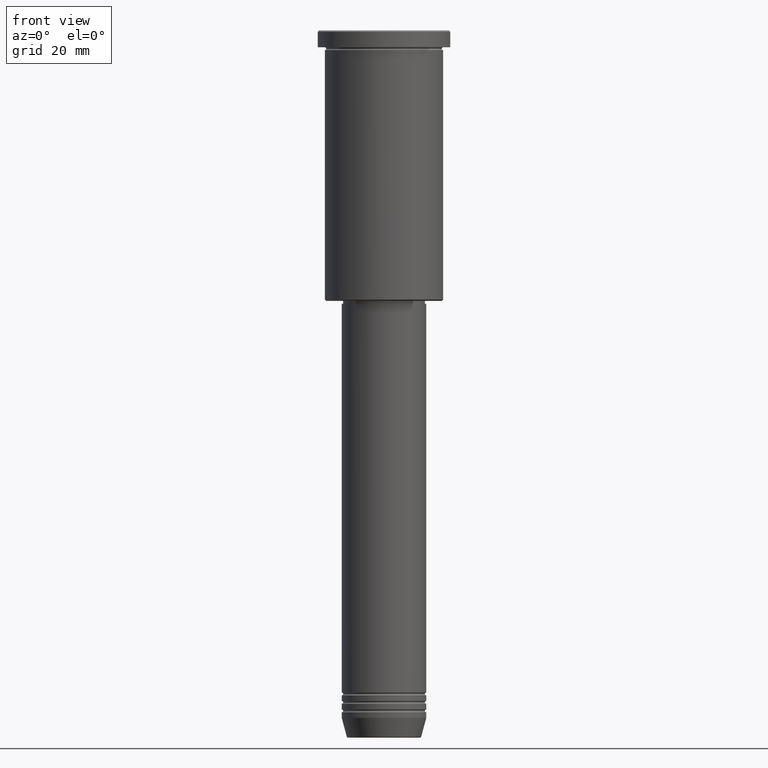
[diagram: clean part render]
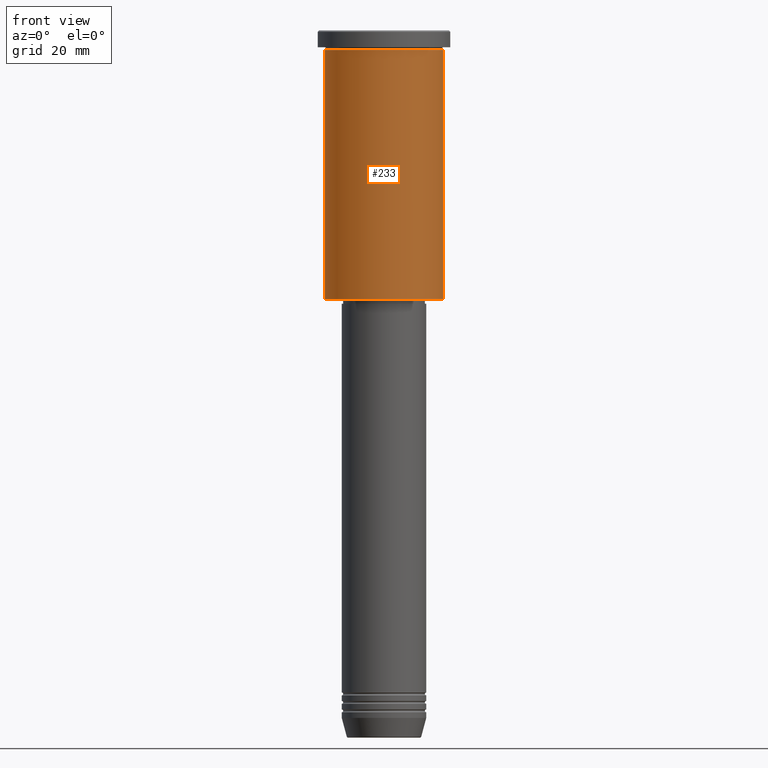
[diagram: same view with one face highlighted and labeled with its STEP entity id]
A machine part, front view. The second image highlights one B-rep face of the part: STEP entity #233.
In plain terms, the highlighted cylindrical surface (partial cylindrical patch) has radius 21 mm, axis along (-0, -0, 1).
Its self-contained STEP definition (entity closure, byte-faithful):
#33 = LINE ( 'NONE', #414, #771 ) ;
#35 = AXIS2_PLACEMENT_3D ( 'NONE', #1159, #425, #169 ) ;
#100 = VERTEX_POINT ( 'NONE', #131 ) ;
#124 = DIRECTION ( 'NONE',  ( -0.000000000000000000, -0.000000000000000000, 1.000000000000000000 ) ) ;
#131 = CARTESIAN_POINT ( 'NONE',  ( -21.00000000000000000, 2.571758278209441661E-15, -95.49999999999997158 ) ) ;
#138 = CARTESIAN_POINT ( 'NONE',  ( 0.000000000000000000, 0.000000000000000000, 0.000000000000000000 ) ) ;
#144 = FACE_OUTER_BOUND ( 'NONE', #548, .T. ) ;
#169 = DIRECTION ( 'NONE',  ( 1.000000000000000000, 0.000000000000000000, 0.000000000000000000 ) ) ;
#170 = CARTESIAN_POINT ( 'NONE',  ( -21.00000000000000000, 2.571758278209441661E-15, -6.999999999999994671 ) ) ;
#212 = LINE ( 'NONE', #942, #715 ) ;
#233 = ADVANCED_FACE ( 'NONE', ( #144 ), #943, .T. ) ;
#239 = EDGE_CURVE ( 'NONE', #100, #273, #33, .T. ) ;
#242 = VERTEX_POINT ( 'NONE', #775 ) ;
#243 = CARTESIAN_POINT ( 'NONE',  ( 0.000000000000000000, 0.000000000000000000, -95.49999999999997158 ) ) ;
#257 = ORIENTED_EDGE ( 'NONE', *, *, #951, .T. ) ;
#272 = CARTESIAN_POINT ( 'NONE',  ( 21.00000000000000000, 0.000000000000000000, -95.49999999999997158 ) ) ;
#273 = VERTEX_POINT ( 'NONE', #170 ) ;
#346 = ORIENTED_EDGE ( 'NONE', *, *, #946, .F. ) ;
#414 = CARTESIAN_POINT ( 'NONE',  ( -21.00000000000000000, 2.571758278209441661E-15, 0.000000000000000000 ) ) ;
#425 = DIRECTION ( 'NONE',  ( -0.000000000000000000, -0.000000000000000000, 1.000000000000000000 ) ) ;
#526 = EDGE_CURVE ( 'NONE', #1049, #242, #212, .T. ) ;
#548 = EDGE_LOOP ( 'NONE', ( #735, #257, #584, #346 ) ) ;
#578 = DIRECTION ( 'NONE',  ( -0.000000000000000000, -0.000000000000000000, 1.000000000000000000 ) ) ;
#584 = ORIENTED_EDGE ( 'NONE', *, *, #526, .T. ) ;
#694 = AXIS2_PLACEMENT_3D ( 'NONE', #138, #124, #853 ) ;
#700 = DIRECTION ( 'NONE',  ( -1.000000000000000000, 0.000000000000000000, 0.000000000000000000 ) ) ;
#715 = VECTOR ( 'NONE', #578, 1000.000000000000000 ) ;
#735 = ORIENTED_EDGE ( 'NONE', *, *, #239, .F. ) ;
#771 = VECTOR ( 'NONE', #1135, 1000.000000000000000 ) ;
#775 = CARTESIAN_POINT ( 'NONE',  ( 21.00000000000000000, 0.000000000000000000, -6.999999999999994671 ) ) ;
#785 = DIRECTION ( 'NONE',  ( -0.000000000000000000, -0.000000000000000000, 1.000000000000000000 ) ) ;
#853 = DIRECTION ( 'NONE',  ( 1.000000000000000000, 0.000000000000000000, 0.000000000000000000 ) ) ;
#942 = CARTESIAN_POINT ( 'NONE',  ( 21.00000000000000000, 0.000000000000000000, 0.000000000000000000 ) ) ;
#943 = CYLINDRICAL_SURFACE ( 'NONE', #694, 21.00000000000000000 ) ;
#946 = EDGE_CURVE ( 'NONE', #273, #242, #1030, .T. ) ;
#951 = EDGE_CURVE ( 'NONE', #100, #1049, #1148, .T. ) ;
#1014 = AXIS2_PLACEMENT_3D ( 'NONE', #243, #785, #700 ) ;
#1030 = CIRCLE ( 'NONE', #35, 21.00000000000000000 ) ;
#1049 = VERTEX_POINT ( 'NONE', #272 ) ;
#1135 = DIRECTION ( 'NONE',  ( -0.000000000000000000, -0.000000000000000000, 1.000000000000000000 ) ) ;
#1148 = CIRCLE ( 'NONE', #1014, 21.00000000000000000 ) ;
#1159 = CARTESIAN_POINT ( 'NONE',  ( 0.000000000000000000, 0.000000000000000000, -6.999999999999994671 ) ) ;